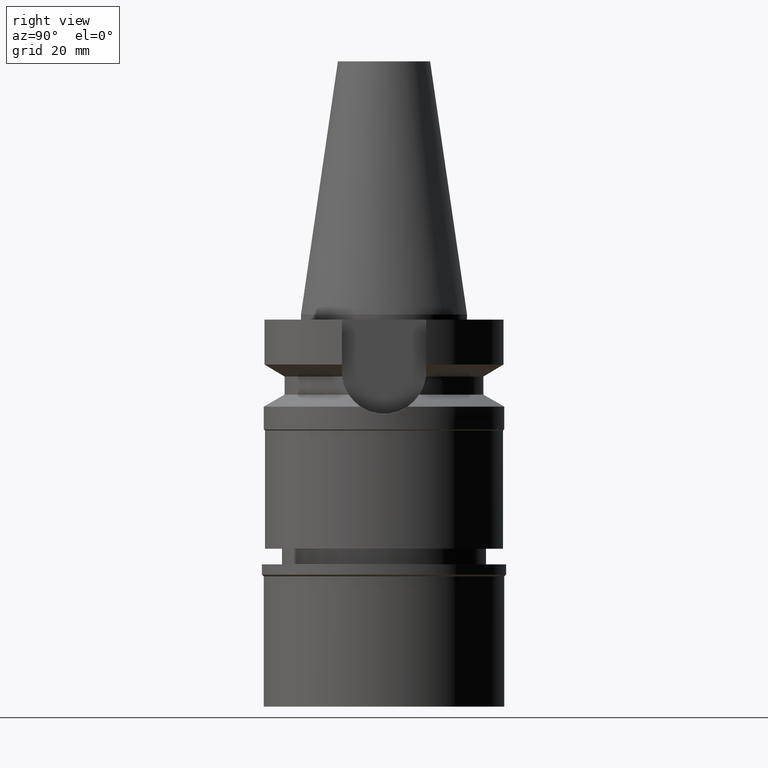
[diagram: clean part render]
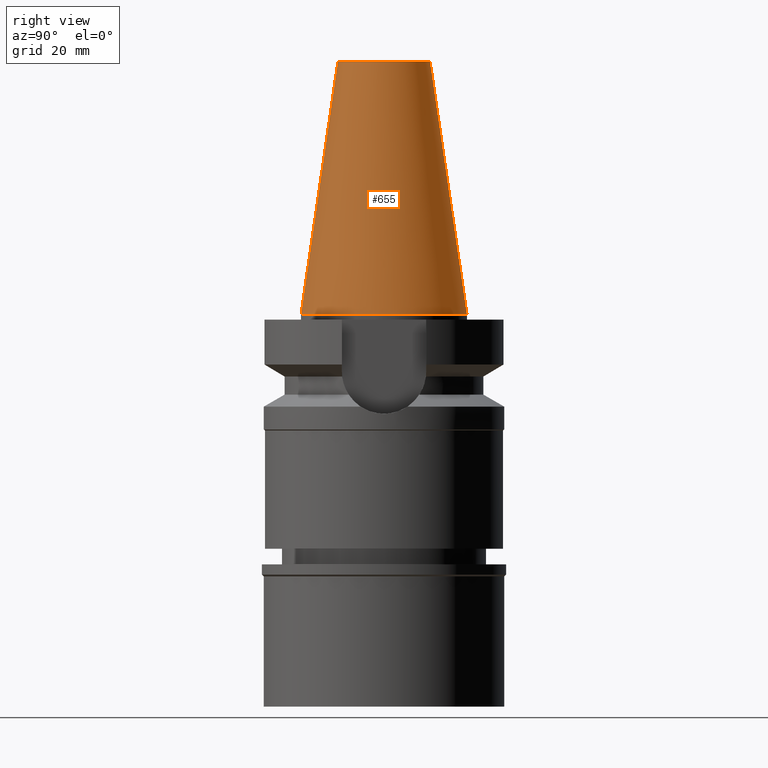
[diagram: same view with one face highlighted and labeled with its STEP entity id]
A machine part, right view. The second image highlights one B-rep face of the part: STEP entity #655.
In plain terms, the highlighted conical surface has half-angle 8.297 deg.
Its self-contained STEP definition (entity closure, byte-faithful):
#22 = VERTEX_POINT ( 'NONE', #2491 ) ;
#28 = LINE ( 'NONE', #953, #2293 ) ;
#98 = AXIS2_PLACEMENT_3D ( 'NONE', #1394, #1605, #697 ) ;
#125 = DIRECTION ( 'NONE',  ( 0.0000000000000000000, 0.0000000000000000000, -1.000000000000000000 ) ) ;
#193 = CARTESIAN_POINT ( 'NONE',  ( 0.0000000000000000000, 0.0000000000000000000, 48.39999999999999858 ) ) ;
#251 = ORIENTED_EDGE ( 'NONE', *, *, #2228, .F. ) ;
#402 = LINE ( 'NONE', #1355, #2257 ) ;
#430 = CIRCLE ( 'NONE', #98, 15.87500000000000000 ) ;
#434 = CARTESIAN_POINT ( 'NONE',  ( 0.0000000000000000000, 15.87500000000000000, -1.527666881883999820E-13 ) ) ;
#465 = DIRECTION ( 'NONE',  ( 0.0000000000000000000, 0.1443043893539925626, -0.9895333461855498891 ) ) ;
#570 = DIRECTION ( 'NONE',  ( 0.0000000000000000000, -1.000000000000000000, 0.0000000000000000000 ) ) ;
#655 = ADVANCED_FACE ( 'NONE', ( #2245 ), #2125, .T. ) ;
#666 = EDGE_LOOP ( 'NONE', ( #1873, #2689, #1592, #251 ) ) ;
#697 = DIRECTION ( 'NONE',  ( 0.0000000000000000000, 1.000000000000000000, 0.0000000000000000000 ) ) ;
#708 = CARTESIAN_POINT ( 'NONE',  ( 0.0000000000000000000, -15.87500000000000000, -1.527666881883999820E-13 ) ) ;
#770 = CIRCLE ( 'NONE', #2193, 8.816791732783000768 ) ;
#821 = EDGE_CURVE ( 'NONE', #2288, #2092, #402, .T. ) ;
#953 = CARTESIAN_POINT ( 'NONE',  ( 0.0000000000000000000, 8.816791732783000768, 48.39999999999999858 ) ) ;
#1129 = AXIS2_PLACEMENT_3D ( 'NONE', #2217, #125, #570 ) ;
#1159 = DIRECTION ( 'NONE',  ( 0.0000000000000000000, -0.1443043893539925626, -0.9895333461855498891 ) ) ;
#1329 = EDGE_CURVE ( 'NONE', #1906, #2092, #430, .T. ) ;
#1355 = CARTESIAN_POINT ( 'NONE',  ( 0.0000000000000000000, -8.816791732783000768, 48.39999999999999858 ) ) ;
#1394 = CARTESIAN_POINT ( 'NONE',  ( 0.0000000000000000000, 0.0000000000000000000, -3.410605131648000255E-13 ) ) ;
#1457 = EDGE_CURVE ( 'NONE', #22, #2288, #770, .T. ) ;
#1592 = ORIENTED_EDGE ( 'NONE', *, *, #1329, .F. ) ;
#1605 = DIRECTION ( 'NONE',  ( 0.0000000000000000000, 0.0000000000000000000, -1.000000000000000000 ) ) ;
#1820 = DIRECTION ( 'NONE',  ( 0.0000000000000000000, 1.000000000000000000, 0.0000000000000000000 ) ) ;
#1873 = ORIENTED_EDGE ( 'NONE', *, *, #1457, .T. ) ;
#1906 = VERTEX_POINT ( 'NONE', #434 ) ;
#1939 = CARTESIAN_POINT ( 'NONE',  ( 0.0000000000000000000, -8.816791732783000768, 48.39999999999999858 ) ) ;
#2054 = DIRECTION ( 'NONE',  ( 0.0000000000000000000, 0.0000000000000000000, -1.000000000000000000 ) ) ;
#2092 = VERTEX_POINT ( 'NONE', #708 ) ;
#2125 = CONICAL_SURFACE ( 'NONE', #1129, 12.34589586639000025, 0.1448099680379422438 ) ;
#2193 = AXIS2_PLACEMENT_3D ( 'NONE', #193, #2054, #1820 ) ;
#2217 = CARTESIAN_POINT ( 'NONE',  ( 0.0000000000000000000, 0.0000000000000000000, 24.19999999999999929 ) ) ;
#2228 = EDGE_CURVE ( 'NONE', #22, #1906, #28, .T. ) ;
#2245 = FACE_OUTER_BOUND ( 'NONE', #666, .T. ) ;
#2257 = VECTOR ( 'NONE', #1159, 1000.000000000000114 ) ;
#2288 = VERTEX_POINT ( 'NONE', #1939 ) ;
#2293 = VECTOR ( 'NONE', #465, 1000.000000000000114 ) ;
#2491 = CARTESIAN_POINT ( 'NONE',  ( 0.0000000000000000000, 8.816791732783000768, 48.39999999999999858 ) ) ;
#2689 = ORIENTED_EDGE ( 'NONE', *, *, #821, .T. ) ;